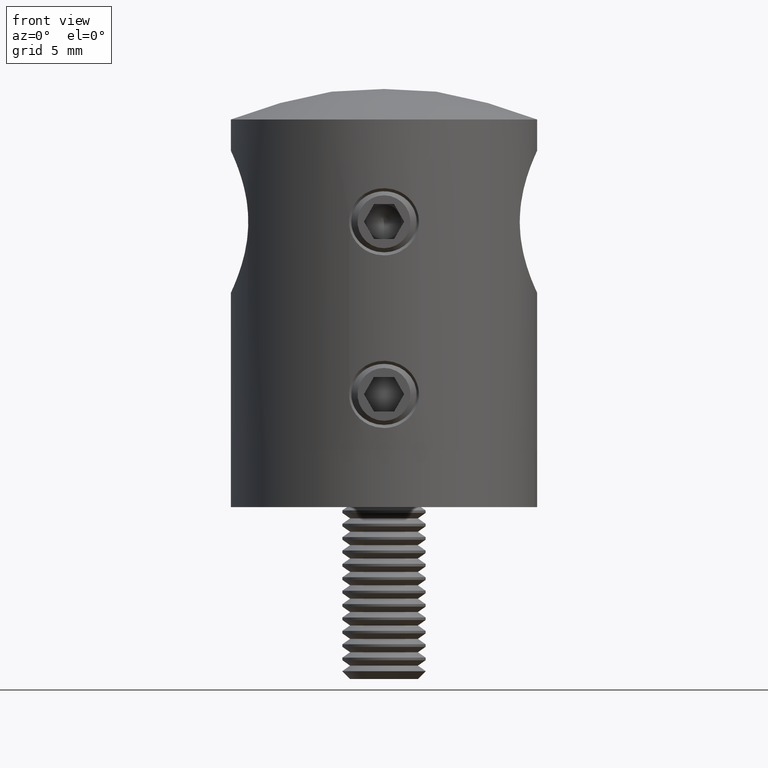
[diagram: clean part render]
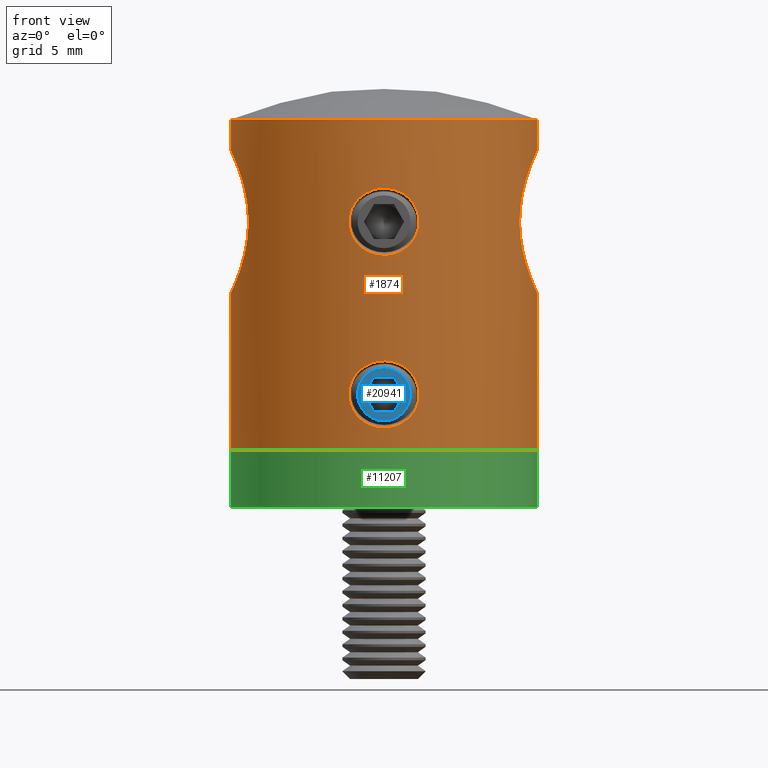
[diagram: same view with three faces highlighted in distinct colors, each labeled with its STEP entity id]
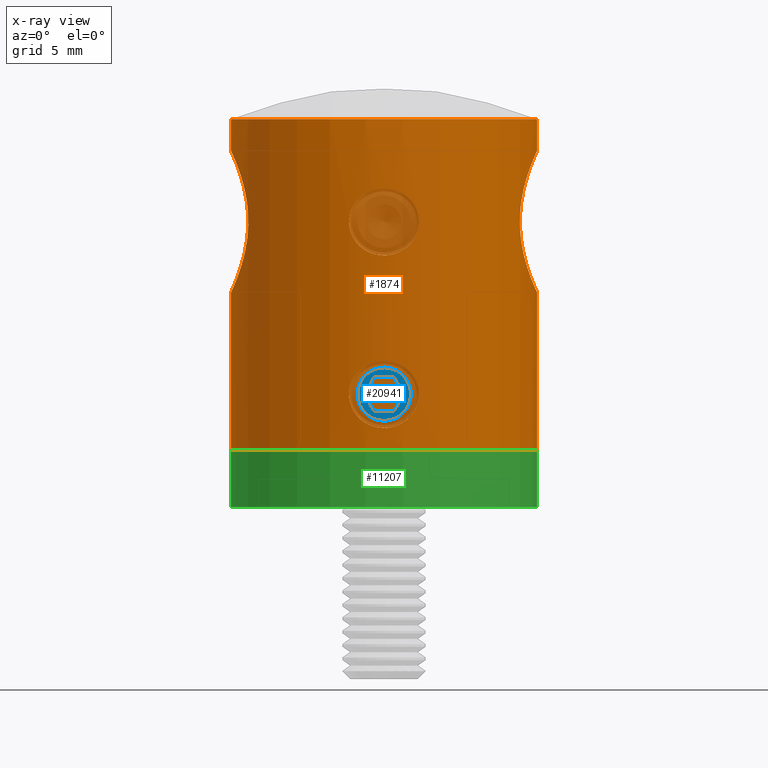
[diagram: x-ray of the same camera — body ghosted, the three highlighted faces saturated]
A machine part, front view with three faces highlighted in distinct colors.
The next image is the same camera in x-ray (body ghosted, the three faces saturated) — at least one of them is partly hidden behind the body in this view.
Their STEP definitions:

[orange] entity #1874 — the highlighted cylindrical surface (bore or boss wall) has radius 11 mm, axis along (0, 0, 1).
#68 = CARTESIAN_POINT ( 'NONE',  ( -10.07413874253476000, 4.421680918401315300, 18.96272170532579100 ) ) ;
#92 = CARTESIAN_POINT ( 'NONE',  ( 2.087175410688430600, -10.80017123961548500, 15.05642817077661600 ) ) ;
#123 = CARTESIAN_POINT ( 'NONE',  ( 0.9648935137385287200, -10.95759921274479100, 6.229834885426770400 ) ) ;
#169 = CARTESIAN_POINT ( 'NONE',  ( 10.30987621817060100, -3.842732241926132300, 19.76912654204613400 ) ) ;
#201 = CARTESIAN_POINT ( 'NONE',  ( 1.265772666319474600, -10.93117442413812100, 1.890181047744562000 ) ) ;
#242 = CARTESIAN_POINT ( 'NONE',  ( 0.6509923734586801100, -10.98190638562795800, 14.06202588692813500 ) ) ;
#245 = CARTESIAN_POINT ( 'NONE',  ( 10.98461965845903200, 0.6696594642287665400, 21.46708344749500700 ) ) ;
#274 = CARTESIAN_POINT ( 'NONE',  ( 2.089123661313935900, -10.79979455025595500, 5.340769317046009800 ) ) ;
#294 = CARTESIAN_POINT ( 'NONE',  ( -10.98362801482573100, -0.6851161954445393900, 11.33505918355280800 ) ) ;
#322 = CARTESIAN_POINT ( 'NONE',  ( 9.764554807653103900, -5.065479761543580900, 15.71864772819508700 ) ) ;
#397 = CARTESIAN_POINT ( 'NONE',  ( 9.815636342375485800, -4.965348642925767400, 15.22371585600221900 ) ) ;
#409 = EDGE_CURVE ( 'NONE', #2260, #2260, #21624, .T. ) ;
#444 = CARTESIAN_POINT ( 'NONE',  ( -9.746435882187436000, -5.099704667917423600, 16.57715091522956600 ) ) ;
#472 = CARTESIAN_POINT ( 'NONE',  ( 10.76752374769291600, 2.271502190894515200, 20.97854765344257500 ) ) ;
#546 = CARTESIAN_POINT ( 'NONE',  ( 9.831401816782660700, 4.934482580680001900, 15.06731954339826500 ) ) ;
#597 = CARTESIAN_POINT ( 'NONE',  ( -10.30907895527403900, -3.845060912577609200, 13.03314621997213000 ) ) ;
#702 = CARTESIAN_POINT ( 'NONE',  ( 11.00000000000000200, 0.3420402686100437200, 11.29999999999999700 ) ) ;
#986 = EDGE_LOOP ( 'NONE', ( #4787 ) ) ;
#1330 = CARTESIAN_POINT ( 'NONE',  ( -2.495363705507605000, -10.71327480271960800, 16.71753173803435300 ) ) ;
#1372 = FACE_BOUND ( 'NONE', #3658, .T. ) ;
#1401 = CARTESIAN_POINT ( 'NONE',  ( -1.996185883716013400, -10.81775451557036900, 17.87424092245295900 ) ) ;
#1475 = CARTESIAN_POINT ( 'NONE',  ( -1.892943344172693700, -10.83654561251257900, 17.99533139784182700 ) ) ;
#1506 = CARTESIAN_POINT ( 'NONE',  ( -2.179285043678576000, -10.78236625296386300, 2.788823219965029600 ) ) ;
#1533 = CIRCLE ( 'NONE', #13713, 11.00000000000000000 ) ;
#1540 = CARTESIAN_POINT ( 'NONE',  ( 1.535022905045015500, -10.89323192800198800, 18.31811697579191600 ) ) ;
#1614 = CARTESIAN_POINT ( 'NONE',  ( -2.319860156032100400, -10.75259265742242600, 17.32577823827256900 ) ) ;
#1636 = ORIENTED_EDGE ( 'NONE', *, *, #13036, .F. ) ;
#1646 = CARTESIAN_POINT ( 'NONE',  ( -0.3315329495189393000, -10.99999999999999600, 1.584844930053871600 ) ) ;
#1718 = CARTESIAN_POINT ( 'NONE',  ( 1.535022905085276800, -10.89323192799682400, 5.918116975765959100 ) ) ;
#1736 = CARTESIAN_POINT ( 'NONE',  ( -9.764554807653102100, 5.065479761543580900, 15.71864772819509100 ) ) ;
#1793 = CARTESIAN_POINT ( 'NONE',  ( 2.463009590041774600, -10.72070817434008000, 3.526680430776609800 ) ) ;
#1813 = CARTESIAN_POINT ( 'NONE',  ( -9.831210612696358100, 4.934853384125918100, 17.73043615380184000 ) ) ;
#1872 = CARTESIAN_POINT ( 'NONE',  ( 1.399033590713174800, -10.91066932007638700, 6.005811658922017800 ) ) ;
#1874 = ADVANCED_FACE ( 'NONE', ( #12457, #10279, #2156, #1372, #14330, #20322 ), #14054, .T. ) ;
#1919 = CARTESIAN_POINT ( 'NONE',  ( 10.00294675193621100, -4.578365243016970800, 18.67177825640489200 ) ) ;
#1947 = CARTESIAN_POINT ( 'NONE',  ( -0.6530340315527127800, -10.98180644576739700, 6.337544000683097400 ) ) ;
#1965 = CARTESIAN_POINT ( 'NONE',  ( -10.55011019610969000, 3.126729857943599800, 20.44275101567399100 ) ) ;
#1990 = CARTESIAN_POINT ( 'NONE',  ( 10.70022606909253500, 2.566238421094041200, 20.81964023380006900 ) ) ;
#2020 = CARTESIAN_POINT ( 'NONE',  ( 2.256830909742726800, -10.76619328781119300, 5.071927192361033400 ) ) ;
#2036 = CARTESIAN_POINT ( 'NONE',  ( -9.745983956010393400, -5.100568316517894600, 16.07184845647866600 ) ) ;
#2060 = CARTESIAN_POINT ( 'NONE',  ( 10.69954747067740900, -2.569226743090022400, 11.98195554385583300 ) ) ;
#2130 = CARTESIAN_POINT ( 'NONE',  ( 11.00031598307091900, 0.3266202780843043800, 21.50068153325095100 ) ) ;
#2156 = FACE_BOUND ( 'NONE', #20956, .T. ) ;
#2176 = CARTESIAN_POINT ( 'NONE',  ( -10.47336877759368400, -3.371864480480711200, 20.24047110347593300 ) ) ;
#2208 = CARTESIAN_POINT ( 'NONE',  ( 10.55378527435345500, 3.114166653605242800, 20.45225437055679100 ) ) ;
#2249 = CARTESIAN_POINT ( 'NONE',  ( -9.763479344190180600, -5.067548827356644900, 15.73283853468677900 ) ) ;
#2260 = VERTEX_POINT ( 'NONE', #2459 ) ;
#2276 = CARTESIAN_POINT ( 'NONE',  ( 10.47201491691117100, 3.376167339972384200, 12.56311429802452300 ) ) ;
#2350 = CARTESIAN_POINT ( 'NONE',  ( 10.00222700330179600, 4.579911297734634300, 14.13158646250898800 ) ) ;
#2459 = CARTESIAN_POINT ( 'NONE',  ( -10.99999999999999800, 0.0000000000000000000, 11.29999999999999700 ) ) ;
#3055 = CARTESIAN_POINT ( 'NONE',  ( 0.3311095054345719000, -10.99992139316568700, 18.81483076791868600 ) ) ;
#3130 = CARTESIAN_POINT ( 'NONE',  ( -2.511729057886776100, -10.70939854239878000, 16.55793633575457200 ) ) ;
#3165 = CARTESIAN_POINT ( 'NONE',  ( -2.495562452211827600, -10.71322910456378900, 3.683362971071481300 ) ) ;
#3207 = CARTESIAN_POINT ( 'NONE',  ( -1.776361239528236000, -10.85562254072522800, 18.10747495177491800 ) ) ;
#3237 = CARTESIAN_POINT ( 'NONE',  ( -2.463083399544349300, -10.72069121684273800, 4.472964312552125700 ) ) ;
#3280 = CARTESIAN_POINT ( 'NONE',  ( -2.430803093581094000, -10.72810763096586800, 17.02839688706989600 ) ) ;
#3354 = CARTESIAN_POINT ( 'NONE',  ( -2.430626934628957100, -10.72814813956344100, 15.77081717116243500 ) ) ;
#3360 = VERTEX_POINT ( 'NONE', #11021 ) ;
#3389 = CARTESIAN_POINT ( 'NONE',  ( 0.1643935056628486900, -11.00000000000000000, 1.584844886136918000 ) ) ;
#3409 = CARTESIAN_POINT ( 'NONE',  ( -10.99999999999999600, 0.3420402686100470500, 11.29999999999999900 ) ) ;
#3430 = CARTESIAN_POINT ( 'NONE',  ( -2.020667218593132300E-015, -10.99999999999999800, 13.98484490069484600 ) ) ;
#3463 = CARTESIAN_POINT ( 'NONE',  ( 2.087175410688430600, -10.80017123961548500, 2.656428170776617300 ) ) ;
#3482 = CARTESIAN_POINT ( 'NONE',  ( -9.746124043521533100, 5.100300603888077200, 16.55970841759691200 ) ) ;
#3505 = CARTESIAN_POINT ( 'NONE',  ( 0.4897246382423631200, -10.98909321912860500, 14.03119656173292800 ) ) ;
#3614 = CARTESIAN_POINT ( 'NONE',  ( 2.178857699620390800, -10.78245327803794100, 2.788117446777010700 ) ) ;
#3657 = CARTESIAN_POINT ( 'NONE',  ( 10.69790093024885600, -2.576078500588502500, 20.81407917215978300 ) ) ;
#3658 = EDGE_LOOP ( 'NONE', ( #6741 ) ) ;
#3686 = CARTESIAN_POINT ( 'NONE',  ( 2.511799944583926100, -10.70938191707799400, 4.156688389902742000 ) ) ;
#3729 = CARTESIAN_POINT ( 'NONE',  ( 1.995493121756457100, -10.81788920119303300, 14.92473889477621200 ) ) ;
#3731 = CARTESIAN_POINT ( 'NONE',  ( 9.833678025644266200, 4.929959429588495600, 17.74888431453495100 ) ) ;
#3778 = CARTESIAN_POINT ( 'NONE',  ( -10.99967404411871300, 0.3475679165322346200, 21.49929695674811800 ) ) ;
#3790 = EDGE_CURVE ( 'NONE', #3360, #3360, #13560, .T. ) ;
#3807 = CARTESIAN_POINT ( 'NONE',  ( 9.782123209470828600, 5.031053208532882500, 17.25264343705779500 ) ) ;
#3856 = CARTESIAN_POINT ( 'NONE',  ( -10.23062083369498000, -4.046496105150158200, 19.52160426523857600 ) ) ;
#3864 = B_SPLINE_CURVE_WITH_KNOTS ( 'NONE', 3,
 ( #18662, #1646, #17077, #13731, #20346, #10268, #9971, #4766, #13519, #16863, #6511, #11737, #18594, #1506, #13453, #8235, #6728, #8312, #11814, #3165, #4907, #13583, #17006, #6651, #3237, #15336, #8447, #20559, #10191, #22297, #11954, #13655, #10495, #10345, #15708, #5346, #12169, #7026, #1947, #20863, #8665, #5200, #15781, #13955, #22443, #123, #8889, #17442, #1872, #1718, #12105, #7099, #6871, #5427, #274, #14023, #2020, #13802, #20938, #12311, #5128, #18947, #3686, #10642, #17516, #7173, #1793, #19109, #19256, #12246, #20788, #3614, #3463, #21006, #17301, #12389, #15559, #201, #19178, #8813, #8740, #10564, #8599, #3389, #15480 ),
 .UNSPECIFIED., .T., .F.,
 ( 4, 3, 3, 3, 3, 3, 3, 3, 3, 3, 3, 3, 3, 3, 3, 3, 3, 3, 3, 3, 3, 3, 3, 3, 3, 3, 3, 3, 4 ),
 ( 0.0000000000000000000, 0.03571428571428571200, 0.07142857142857142500, 0.1071428571428571400, 0.1428571428571428500, 0.1785714285714285800, 0.2142857142857142700, 0.2500000000000000000, 0.2857142857142857000, 0.3214285714285714500, 0.3571428571428571500, 0.3928571428571428500, 0.4285714285714285500, 0.4642857142857143000, 0.5000000000000000000, 0.5357142857142857000, 0.5714285714285714000, 0.6071428571428571000, 0.6428571428571429000, 0.6785714285714286000, 0.7142857142857143000, 0.7500000000000000000, 0.7857142857142857000, 0.8214285714285714000, 0.8571428571428571000, 0.8928571428571429000, 0.9285714285714286000, 0.9642857142857143000, 1.000000000000000000 ),
 .UNSPECIFIED. ) ;
#3933 = CARTESIAN_POINT ( 'NONE',  ( -10.07469812271536100, -4.420400662356025900, 13.83512119538369900 ) ) ;
#3961 = CARTESIAN_POINT ( 'NONE',  ( 9.767782344364496400, -5.058733202320076400, 17.06944071582966400 ) ) ;
#4014 = CARTESIAN_POINT ( 'NONE',  ( -10.87989800168600500, -1.651396176960101300, 21.23691135796435600 ) ) ;
#4037 = CARTESIAN_POINT ( 'NONE',  ( 10.92259533598678600, 1.344016255707064300, 11.46881049038183600 ) ) ;
#4132 = CIRCLE ( 'NONE', #20666, 10.99999999999999600 ) ;
#4231 = EDGE_CURVE ( 'NONE', #9034, #9034, #3864, .T. ) ;
#4334 = CARTESIAN_POINT ( 'NONE',  ( 10.30907895527403500, 3.845060912577607400, 13.03314621997213000 ) ) ;
#4406 = DIRECTION ( 'NONE',  ( -0.0000000000000000000, -0.0000000000000000000, 1.000000000000000000 ) ) ;
#4766 = CARTESIAN_POINT ( 'NONE',  ( -1.533328306870229700, -10.89347143110832900, 2.080631270009437800 ) ) ;
#4787 = ORIENTED_EDGE ( 'NONE', *, *, #14007, .T. ) ;
#4806 = CARTESIAN_POINT ( 'NONE',  ( 2.463499994663159100, -10.72059549541417000, 16.87095394980573500 ) ) ;
#4879 = CARTESIAN_POINT ( 'NONE',  ( -0.6530340314932273600, -10.98180644577005100, 18.73754400069448100 ) ) ;
#4907 = CARTESIAN_POINT ( 'NONE',  ( -2.511703974928243700, -10.70940442520010400, 3.842739291575714100 ) ) ;
#4945 = CARTESIAN_POINT ( 'NONE',  ( -0.4903270790838651400, -10.98906635504204500, 18.76868820874940300 ) ) ;
#5017 = CARTESIAN_POINT ( 'NONE',  ( 2.383584876156975800, -10.73884196754174300, 17.17801713178284500 ) ) ;
#5097 = CARTESIAN_POINT ( 'NONE',  ( -0.9631123533028067600, -10.95775591053731500, 18.63054673490993100 ) ) ;
#5128 = CARTESIAN_POINT ( 'NONE',  ( 2.463499994663159100, -10.72059549541417000, 4.470953949805736900 ) ) ;
#5143 = CARTESIAN_POINT ( 'NONE',  ( -10.76607921010692700, 2.278039284623406300, 11.82485560310605200 ) ) ;
#5200 = CARTESIAN_POINT ( 'NONE',  ( -0.1616220107861330000, -11.00003883473656800, 6.415315291332948500 ) ) ;
#5219 = CARTESIAN_POINT ( 'NONE',  ( -9.767782344364500000, 5.058733202320079100, 17.06944071582966800 ) ) ;
#5244 = CARTESIAN_POINT ( 'NONE',  ( 2.430721202022829700, -10.72812621128730400, 15.77131744761732800 ) ) ;
#5316 = CARTESIAN_POINT ( 'NONE',  ( 2.256039582261505100, -10.76635616935049600, 15.32675565418613100 ) ) ;
#5346 = CARTESIAN_POINT ( 'NONE',  ( -1.268443744210112200, -10.93091935414430800, 6.108644643610253100 ) ) ;
#5368 = CARTESIAN_POINT ( 'NONE',  ( -10.07530021768211400, 4.419092927928359100, 13.83261717824195000 ) ) ;
#5398 = CARTESIAN_POINT ( 'NONE',  ( 9.880785821988753900, -4.836366772746158600, 18.05286453897976900 ) ) ;
#5427 = CARTESIAN_POINT ( 'NONE',  ( 1.998357958369267700, -10.81735236367315700, 5.471525135721878800 ) ) ;
#5522 = CARTESIAN_POINT ( 'NONE',  ( -10.55378527435345100, -3.114166653605242800, 20.45225437055679400 ) ) ;
#5549 = CARTESIAN_POINT ( 'NONE',  ( 9.763479344190173500, 5.067548827356644900, 15.73283853468677900 ) ) ;
#5597 = CARTESIAN_POINT ( 'NONE',  ( -10.92420653231054900, -1.331174097726975900, 21.33474963736254500 ) ) ;
#5628 = CARTESIAN_POINT ( 'NONE',  ( 10.76607921010692700, -2.278039284623406800, 11.82485560310605500 ) ) ;
#5677 = CARTESIAN_POINT ( 'NONE',  ( -10.55128804721514000, -3.122534710036641400, 12.35424311392542600 ) ) ;
#5749 = CARTESIAN_POINT ( 'NONE',  ( -10.98389058231152000, 0.6828063300958870900, 21.46551967963448200 ) ) ;
#6198 = CARTESIAN_POINT ( 'NONE',  ( 0.0000000000000000000, 0.0000000000000000000, 0.0000000000000000000 ) ) ;
#6237 = EDGE_LOOP ( 'NONE', ( #8002 ) ) ;
#6511 = CARTESIAN_POINT ( 'NONE',  ( -1.892899697423030100, -10.83654340792634900, 2.404725380980155000 ) ) ;
#6551 = CARTESIAN_POINT ( 'NONE',  ( -1.261211241404091900, -10.92831925419361200, 14.30547254870696400 ) ) ;
#6619 = CARTESIAN_POINT ( 'NONE',  ( 1.660782927847469700, -10.87454360747016800, 18.21873868081512500 ) ) ;
#6651 = CARTESIAN_POINT ( 'NONE',  ( -2.495363705507605000, -10.71327480271960800, 4.317531738034352500 ) ) ;
#6698 = CARTESIAN_POINT ( 'NONE',  ( 1.116343252776377500, -10.94426300031195800, 18.56924477539900700 ) ) ;
#6728 = CARTESIAN_POINT ( 'NONE',  ( -2.382999229848468600, -10.73896813810681100, 3.220662270662221900 ) ) ;
#6741 = ORIENTED_EDGE ( 'NONE', *, *, #3790, .T. ) ;
#6768 = CARTESIAN_POINT ( 'NONE',  ( -0.8104466576801517800, -10.97117418874867300, 18.69149778061502700 ) ) ;
#6871 = CARTESIAN_POINT ( 'NONE',  ( 1.893470199382560000, -10.83645095076173300, 5.594738271604635200 ) ) ;
#6890 = CARTESIAN_POINT ( 'NONE',  ( -10.31115410062419500, 3.839293709232861000, 13.02699850404312800 ) ) ;
#6915 = CARTESIAN_POINT ( 'NONE',  ( 0.3284569030260461900, -10.99628005262925400, 14.00036723653772300 ) ) ;
#6970 = CARTESIAN_POINT ( 'NONE',  ( -9.780729526921806600, 5.033756045906779200, 17.23636692954555400 ) ) ;
#7026 = CARTESIAN_POINT ( 'NONE',  ( -0.8104466578491685800, -10.97117418873381900, 6.291497780559771200 ) ) ;
#7070 = CARTESIAN_POINT ( 'NONE',  ( 2.381829622713069700, -10.73922843645709300, 15.61740488451371400 ) ) ;
#7072 = CARTESIAN_POINT ( 'NONE',  ( 9.831210612696356300, -4.934853384125914600, 17.73043615380182200 ) ) ;
#7099 = CARTESIAN_POINT ( 'NONE',  ( 1.777126563584013900, -10.85549727912102600, 5.706738476233899100 ) ) ;
#7117 = CARTESIAN_POINT ( 'NONE',  ( -9.815636342375487500, 4.965348642925768300, 15.22371585600222100 ) ) ;
#7143 = CARTESIAN_POINT ( 'NONE',  ( 1.265772666088006400, -10.93117442415845100, 14.29018104766522700 ) ) ;
#7173 = CARTESIAN_POINT ( 'NONE',  ( 2.495297978060744700, -10.71329013739285200, 3.682043413930197400 ) ) ;
#7192 = CARTESIAN_POINT ( 'NONE',  ( -10.76524624909549000, 2.281684813646021900, 20.97317419629084200 ) ) ;
#7221 = CARTESIAN_POINT ( 'NONE',  ( 9.750955816283148900, 5.091093399825955300, 16.74569809806015600 ) ) ;
#7274 = CARTESIAN_POINT ( 'NONE',  ( -9.750955816283152400, -5.091093399825953500, 16.74569809806016000 ) ) ;
#7297 = CARTESIAN_POINT ( 'NONE',  ( 9.746124043521531300, -5.100300603888076300, 16.55970841759690500 ) ) ;
#7342 = CARTESIAN_POINT ( 'NONE',  ( -10.76752374769291600, -2.271502190894517900, 20.97854765344256100 ) ) ;
#7372 = CARTESIAN_POINT ( 'NONE',  ( 10.00436061697043800, -4.575241178648823000, 14.12254123351116800 ) ) ;
#7409 = VERTEX_POINT ( 'NONE', #21618 ) ;
#7451 = CARTESIAN_POINT ( 'NONE',  ( 11.00000000000000000, -1.084202172485504400E-016, 11.29999999999999900 ) ) ;
#7499 = CARTESIAN_POINT ( 'NONE',  ( -10.99999999999999600, 1.897353801849632800E-016, 11.29999999999999900 ) ) ;
#7672 = CARTESIAN_POINT ( 'NONE',  ( 10.22777535093213800, 4.053652137328402500, 13.28769383773697400 ) ) ;
#7741 = DIRECTION ( 'NONE',  ( 1.000000000000000000, 0.0000000000000000000, 0.0000000000000000000 ) ) ;
#7746 = CARTESIAN_POINT ( 'NONE',  ( 10.55128804721513100, 3.122534710036636100, 12.35424311392541900 ) ) ;
#8002 = ORIENTED_EDGE ( 'NONE', *, *, #4231, .T. ) ;
#8203 = CARTESIAN_POINT ( 'NONE',  ( 2.495530447802617200, -10.71323517469580200, 16.71605740764301700 ) ) ;
#8235 = CARTESIAN_POINT ( 'NONE',  ( -2.320240922396904300, -10.75251050043824500, 3.075104445097748900 ) ) ;
#8280 = CARTESIAN_POINT ( 'NONE',  ( -2.382856163137154800, -10.73900133749353000, 17.17981662011126800 ) ) ;
#8312 = CARTESIAN_POINT ( 'NONE',  ( -2.430626934630721900, -10.72814813956303400, 3.370817171176732100 ) ) ;
#8352 = CARTESIAN_POINT ( 'NONE',  ( 1.998357958369216600, -10.81735236367316800, 17.87152513571616200 ) ) ;
#8420 = CARTESIAN_POINT ( 'NONE',  ( -1.533328306870229700, -10.89347143110832900, 14.48063127000943600 ) ) ;
#8447 = CARTESIAN_POINT ( 'NONE',  ( -2.382856163137168100, -10.73900133749352800, 4.779816620111248000 ) ) ;
#8486 = CARTESIAN_POINT ( 'NONE',  ( -0.3276201266745030200, -10.99632626431403900, 18.79983241680432100 ) ) ;
#8599 = CARTESIAN_POINT ( 'NONE',  ( 0.3284569029660139900, -10.99628005263193000, 1.600367236529137300 ) ) ;
#8665 = CARTESIAN_POINT ( 'NONE',  ( -0.3276201266150175500, -10.99632626431669300, 6.399832416815710800 ) ) ;
#8686 = CARTESIAN_POINT ( 'NONE',  ( -10.00294675193620900, 4.578365243016970800, 18.67177825640488500 ) ) ;
#8740 = CARTESIAN_POINT ( 'NONE',  ( 0.6509923735187122000, -10.98190638562528300, 1.662025886936727500 ) ) ;
#8749 = VERTEX_POINT ( 'NONE', #21767 ) ;
#8759 = CARTESIAN_POINT ( 'NONE',  ( -10.99999999999999600, 1.897353801849632800E-016, 11.29999999999999900 ) ) ;
#8784 = CARTESIAN_POINT ( 'NONE',  ( 10.47088620841679000, -3.379449766977662900, 20.23365674153711100 ) ) ;
#8813 = CARTESIAN_POINT ( 'NONE',  ( 0.8106894968027548200, -10.97114265804646700, 1.708653337313666300 ) ) ;
#8863 = CARTESIAN_POINT ( 'NONE',  ( 10.47336877759368300, 3.371864480480710300, 20.24047110347592900 ) ) ;
#8889 = CARTESIAN_POINT ( 'NONE',  ( 1.116343252776195600, -10.94426300031197400, 6.169244775404881600 ) ) ;
#8906 = CARTESIAN_POINT ( 'NONE',  ( -9.883215163198309800, -4.831377203079143500, 18.06668807489311500 ) ) ;
#8934 = CARTESIAN_POINT ( 'NONE',  ( 9.746435882187439500, 5.099704667917422700, 16.57715091522957400 ) ) ;
#8982 = CARTESIAN_POINT ( 'NONE',  ( -10.70022606909253100, -2.566238421094046100, 20.81964023380005500 ) ) ;
#9011 = CARTESIAN_POINT ( 'NONE',  ( 10.98409477427311900, -0.6774680798639226600, 11.33405321981837200 ) ) ;
#9034 = VERTEX_POINT ( 'NONE', #10867 ) ;
#9057 = CARTESIAN_POINT ( 'NONE',  ( -9.833678025644271500, -4.929959429588498300, 17.74888431453494800 ) ) ;
#9084 = CARTESIAN_POINT ( 'NONE',  ( 9.746609327651654600, -5.099373206684544100, 16.05260251348448400 ) ) ;
#9351 = DIRECTION ( 'NONE',  ( -0.0000000000000000000, -0.0000000000000000000, 1.000000000000000000 ) ) ;
#9522 = DIRECTION ( 'NONE',  ( -0.0000000000000000000, -0.0000000000000000000, 1.000000000000000000 ) ) ;
#9939 = CARTESIAN_POINT ( 'NONE',  ( 2.511799944583926100, -10.70938191707799400, 16.55668838989981500 ) ) ;
#9971 = CARTESIAN_POINT ( 'NONE',  ( -1.397269774137160900, -10.91089534265097100, 1.993051909358202400 ) ) ;
#10012 = CARTESIAN_POINT ( 'NONE',  ( -2.257482614959168500, -10.76605286276669600, 15.32954661957115100 ) ) ;
#10087 = CARTESIAN_POINT ( 'NONE',  ( -2.087678545343330000, -10.80007399471471700, 15.05715110750825800 ) ) ;
#10160 = CARTESIAN_POINT ( 'NONE',  ( -0.3315329493984952600, -10.99999999999999600, 13.98484493005393500 ) ) ;
#10191 = CARTESIAN_POINT ( 'NONE',  ( -2.256864148927033100, -10.76618397735132300, 5.071739856433886500 ) ) ;
#10239 = CARTESIAN_POINT ( 'NONE',  ( -2.087083062809130600, -10.80018908579545200, 17.74370445952115500 ) ) ;
#10268 = CARTESIAN_POINT ( 'NONE',  ( -1.261211241404091900, -10.92831925419361200, 1.905472548706967000 ) ) ;
#10279 = FACE_BOUND ( 'NONE', #986, .T. ) ;
#10345 = CARTESIAN_POINT ( 'NONE',  ( -1.776361239528236000, -10.85562254072522800, 5.707474951774919700 ) ) ;
#10364 = CARTESIAN_POINT ( 'NONE',  ( -9.885833756099657400, 4.824245512483266800, 14.73718638957849000 ) ) ;
#10463 = CARTESIAN_POINT ( 'NONE',  ( 2.318934602487287200, -10.75279230290379400, 15.47208026934992200 ) ) ;
#10495 = CARTESIAN_POINT ( 'NONE',  ( -1.892943344172719700, -10.83654561251257500, 5.595331397847613400 ) ) ;
#10537 = CARTESIAN_POINT ( 'NONE',  ( 10.07729814196231300, 4.414498332747689000, 18.97502395870773400 ) ) ;
#10564 = CARTESIAN_POINT ( 'NONE',  ( 0.4897246382423631200, -10.98909321912860500, 1.631196561732932500 ) ) ;
#10584 = CARTESIAN_POINT ( 'NONE',  ( -10.69954747067740900, 2.569226743090020600, 11.98195554385582900 ) ) ;
#10612 = CARTESIAN_POINT ( 'NONE',  ( 10.07530021768211800, -4.419092927928361700, 13.83261717824195400 ) ) ;
#10642 = CARTESIAN_POINT ( 'NONE',  ( 2.511715917072544300, -10.70940162436372500, 3.998297708608496300 ) ) ;
#10664 = CARTESIAN_POINT ( 'NONE',  ( -9.880766135392452300, -4.836382232452141500, 14.74751872209966700 ) ) ;
#10691 = CARTESIAN_POINT ( 'NONE',  ( 10.87817437663434800, -1.662301648955468900, 11.56697170889746400 ) ) ;
#10737 = CARTESIAN_POINT ( 'NONE',  ( -10.99999999999999800, -0.3420402686100491000, 11.29999999999999900 ) ) ;
#10763 = CARTESIAN_POINT ( 'NONE',  ( 9.836864287762125500, -4.923327614744372300, 15.05868010317692600 ) ) ;
#10772 = ORIENTED_EDGE ( 'NONE', *, *, #409, .T. ) ;
#10805 = CARTESIAN_POINT ( 'NONE',  ( -10.87691252494811600, 1.670145597579503200, 21.23017820595980600 ) ) ;
#10832 = CARTESIAN_POINT ( 'NONE',  ( 10.76524624909549400, -2.281684813646024600, 20.97317419629084500 ) ) ;
#10867 = CARTESIAN_POINT ( 'NONE',  ( -2.020667218593132300E-015, -10.99999999999999800, 1.584844900694847100 ) ) ;
#10883 = CARTESIAN_POINT ( 'NONE',  ( -10.79372047998855100, -2.126081526392301400, 11.76127184379781600 ) ) ;
#11021 = CARTESIAN_POINT ( 'NONE',  ( 11.00000000000000000, 0.0000000000000000000, 11.29999999999999700 ) ) ;
#11066 = CARTESIAN_POINT ( 'NONE',  ( 9.880766135392448700, 4.836382232452138800, 14.74751872209966700 ) ) ;
#11333 = CARTESIAN_POINT ( 'NONE',  ( 10.99999999999999600, 0.0000000000000000000, 23.74878637916747000 ) ) ;
#11707 = CARTESIAN_POINT ( 'NONE',  ( -2.382999229834640100, -10.73896813810979400, 15.62066227062434400 ) ) ;
#11737 = CARTESIAN_POINT ( 'NONE',  ( -1.996072047008083900, -10.81778173646557100, 2.525478995051488900 ) ) ;
#11784 = CARTESIAN_POINT ( 'NONE',  ( 0.9648935137385287200, -10.95759921274479100, 18.62983488542676700 ) ) ;
#11814 = CARTESIAN_POINT ( 'NONE',  ( -2.463094693421274500, -10.72068862206341100, 3.527090071124106900 ) ) ;
#11854 = CARTESIAN_POINT ( 'NONE',  ( -2.511716516407509900, -10.70940148379944100, 16.40033781366658500 ) ) ;
#11922 = CARTESIAN_POINT ( 'NONE',  ( -1.115993498471008700, -10.94431255610991500, 14.23051304831070000 ) ) ;
#11954 = CARTESIAN_POINT ( 'NONE',  ( -2.087083062809130600, -10.80018908579545200, 5.343704459521158700 ) ) ;
#11993 = CARTESIAN_POINT ( 'NONE',  ( -2.256864148927046000, -10.76618397735132100, 17.47173985643386700 ) ) ;
#12105 = CARTESIAN_POINT ( 'NONE',  ( 1.660782927785467800, -10.87454360748031900, 5.818738680863162000 ) ) ;
#12169 = CARTESIAN_POINT ( 'NONE',  ( -0.9631123533028165300, -10.95775591053731500, 6.230546734909931500 ) ) ;
#12214 = CARTESIAN_POINT ( 'NONE',  ( 2.463009590041774600, -10.72070817434008000, 15.92668043077660700 ) ) ;
#12246 = CARTESIAN_POINT ( 'NONE',  ( 2.318934602487287200, -10.75279230290379400, 3.072080269349922100 ) ) ;
#12261 = CARTESIAN_POINT ( 'NONE',  ( -10.98409477427311600, 0.6774680798639229900, 11.33405321981837200 ) ) ;
#12284 = CARTESIAN_POINT ( 'NONE',  ( 2.495297978060719400, -10.71329013739285700, 16.08204341393588500 ) ) ;
#12286 = CARTESIAN_POINT ( 'NONE',  ( 9.883215163198309800, 4.831377203079142600, 18.06668807489310100 ) ) ;
#12311 = CARTESIAN_POINT ( 'NONE',  ( 2.431469541523701300, -10.72795581613253500, 4.625850491968456000 ) ) ;
#12360 = CARTESIAN_POINT ( 'NONE',  ( 10.55213191267872500, -3.119896509840596200, 12.35200189701630300 ) ) ;
#12389 = CARTESIAN_POINT ( 'NONE',  ( 1.774878405260975000, -10.85586508052390200, 2.291099913721534000 ) ) ;
#12406 = CARTESIAN_POINT ( 'NONE',  ( -10.98461965845903200, -0.6696594642287685400, 21.46708344749502100 ) ) ;
#12429 = CARTESIAN_POINT ( 'NONE',  ( 10.92420653231055500, 1.331174097726976100, 21.33474963736256000 ) ) ;
#12457 = FACE_BOUND ( 'NONE', #6237, .T. ) ;
#12499 = CARTESIAN_POINT ( 'NONE',  ( 9.750431221126522300, -5.092096281612857200, 16.73088962366718100 ) ) ;
#12543 = CARTESIAN_POINT ( 'NONE',  ( -10.31158215273080500, -3.838254438372356200, 19.77438753519448200 ) ) ;
#12569 = CARTESIAN_POINT ( 'NONE',  ( 10.22735391402577700, -4.054721379485370000, 19.51095471163539200 ) ) ;
#12651 = CARTESIAN_POINT ( 'NONE',  ( 10.07469812271536800, 4.420400662356026800, 13.83512119538370500 ) ) ;
#13036 = EDGE_CURVE ( 'NONE', #17672, #17672, #4132, .T. ) ;
#13175 = CARTESIAN_POINT ( 'NONE',  ( 0.0000000000000000000, 0.0000000000000000000, 23.74878637916747000 ) ) ;
#13422 = CARTESIAN_POINT ( 'NONE',  ( -2.495562452213592400, -10.71322910456338400, 16.08336297108577600 ) ) ;
#13453 = CARTESIAN_POINT ( 'NONE',  ( -2.257482614945340400, -10.76605286276967800, 2.929546619533276000 ) ) ;
#13490 = CARTESIAN_POINT ( 'NONE',  ( 1.399033590713174800, -10.91066932007638700, 18.40581165892201200 ) ) ;
#13519 = CARTESIAN_POINT ( 'NONE',  ( -1.661524859658452900, -10.87442308525437100, 2.181962713599229900 ) ) ;
#13557 = CARTESIAN_POINT ( 'NONE',  ( -1.397269774137160900, -10.91089534265097100, 14.39305190935820100 ) ) ;
#13560 = B_SPLINE_CURVE_WITH_KNOTS ( 'NONE', 3,
 ( #13998, #19375, #9011, #15831, #10691, #5628, #2060, #12360, #14150, #17488, #15978, #10612, #7372, #15754, #19449, #10763, #397, #322, #9084, #7297, #12499, #3961, #21199, #7072, #5398, #1919, #16057, #12569, #169, #8784, #19300, #3657, #10832, #17634, #19225, #21055, #20910, #2130, #245, #12429, #19153, #472, #1990, #2208, #8863, #14068, #14302, #10537, #14229, #12286, #3731, #3807, #17561, #7221, #8934, #15905, #5549, #546, #11066, #2350, #12651, #7672, #4334, #2276, #7746, #14380, #16446, #16214, #19526, #19830, #4037, #17781, #702, #7451 ),
 .UNSPECIFIED., .T., .F.,
 ( 4, 2, 2, 2, 2, 2, 2, 2, 2, 2, 2, 2, 2, 2, 2, 2, 2, 2, 2, 2, 2, 2, 2, 2, 2, 2, 2, 2, 2, 2, 2, 2, 2, 2, 2, 2, 4 ),
 ( 0.0000000000000000000, 0.001010597652588617900, 0.002021195305177235400, 0.003031792957765852900, 0.004042390610354470000, 0.005052988262943087000, 0.006063585915531705800, 0.006568884741826014300, 0.007074183568120321100, 0.008084781220708941700, 0.008590080047003246700, 0.009095378873297553500, 0.01010597652588616200, 0.01111657417847477400, 0.01212717183106338400, 0.01313776948365199600, 0.01414836713624060600, 0.01515896478882921400, 0.01616956244141782400, 0.01718016009400643800, 0.01819075774659504800, 0.01920135539918365800, 0.02021195305177226800, 0.02122255070436087800, 0.02223314835694948900, 0.02324374600953810200, 0.02374904483583240700, 0.02425434366212671200, 0.02526494131471532200, 0.02627553896730392600, 0.02728613661989253200, 0.02829673427248113200, 0.02930733192506973500, 0.02981263075136404000, 0.03031792957765834200, 0.03132852723024694800, 0.03233912488283555800 ),
 .UNSPECIFIED. ) ;
#13583 = CARTESIAN_POINT ( 'NONE',  ( -2.511716516407509900, -10.70940148379944100, 4.000337813666588400 ) ) ;
#13625 = CARTESIAN_POINT ( 'NONE',  ( 2.089123661313935900, -10.79979455025595500, 17.74076931704600600 ) ) ;
#13655 = CARTESIAN_POINT ( 'NONE',  ( -1.996185883738268000, -10.81775451556606900, 5.474240922415229500 ) ) ;
#13698 = CARTESIAN_POINT ( 'NONE',  ( -0.1616220108473223100, -11.00003883473658200, 18.81531529133300400 ) ) ;
#13713 = AXIS2_PLACEMENT_3D ( 'NONE', #6198, #9522, #19650 ) ;
#13731 = CARTESIAN_POINT ( 'NONE',  ( -0.9635496633443911800, -10.95771746515983500, 1.769627895335405900 ) ) ;
#13802 = CARTESIAN_POINT ( 'NONE',  ( 2.320207892953276600, -10.75251762767572900, 4.924972162063986600 ) ) ;
#13823 = CARTESIAN_POINT ( 'NONE',  ( -9.746609327651651000, 5.099373206684540500, 16.05260251348449400 ) ) ;
#13848 = CARTESIAN_POINT ( 'NONE',  ( 1.774878405260975000, -10.85586508052390200, 14.69109991372153200 ) ) ;
#13898 = CARTESIAN_POINT ( 'NONE',  ( -10.22735391402577100, 4.054721379485367400, 19.51095471163538200 ) ) ;
#13955 = CARTESIAN_POINT ( 'NONE',  ( 0.3311095053121640400, -10.99992139316571600, 6.414830767918807900 ) ) ;
#13972 = CARTESIAN_POINT ( 'NONE',  ( -10.55213191267872700, 3.119896509840596200, 12.35200189701629700 ) ) ;
#13998 = CARTESIAN_POINT ( 'NONE',  ( 11.00000000000000000, -1.084202172485504400E-016, 11.29999999999999900 ) ) ;
#14007 = EDGE_CURVE ( 'NONE', #8749, #8749, #21466, .T. ) ;
#14023 = CARTESIAN_POINT ( 'NONE',  ( 2.179889364258604400, -10.78223673683875500, 5.210013498370140700 ) ) ;
#14054 = CYLINDRICAL_SURFACE ( 'NONE', #21158, 10.99999999999999800 ) ;
#14068 = CARTESIAN_POINT ( 'NONE',  ( 10.31158215273080500, 3.838254438372356200, 19.77438753519447800 ) ) ;
#14150 = CARTESIAN_POINT ( 'NONE',  ( 10.47192994644006200, -3.376204713791206100, 12.56352283884598900 ) ) ;
#14200 = CARTESIAN_POINT ( 'NONE',  ( -9.831401816782660700, -4.934482580680002800, 15.06731954339825900 ) ) ;
#14229 = CARTESIAN_POINT ( 'NONE',  ( 10.00459041982638700, 4.574747880705968100, 18.67853826946136000 ) ) ;
#14277 = CARTESIAN_POINT ( 'NONE',  ( -10.69790093024884900, 2.576078500588504300, 20.81407917215977200 ) ) ;
#14302 = CARTESIAN_POINT ( 'NONE',  ( 10.23062083369497800, 4.046496105150160000, 19.52160426523856900 ) ) ;
#14330 = FACE_OUTER_BOUND ( 'NONE', #20400, .T. ) ;
#14350 = CARTESIAN_POINT ( 'NONE',  ( -10.00222700330179200, -4.579911297734634300, 14.13158646250897700 ) ) ;
#14380 = CARTESIAN_POINT ( 'NONE',  ( 10.66112523159967700, 2.713002840732187300, 12.07834423683121400 ) ) ;
#15152 = CARTESIAN_POINT ( 'NONE',  ( 1.263044276381334100, -10.92810671215078600, 18.49350634205210800 ) ) ;
#15229 = CARTESIAN_POINT ( 'NONE',  ( -1.892899697437106800, -10.83654340792404500, 14.80472538099371200 ) ) ;
#15305 = CARTESIAN_POINT ( 'NONE',  ( -1.268443744548116500, -10.93091935411460000, 18.50864464349973900 ) ) ;
#15336 = CARTESIAN_POINT ( 'NONE',  ( -2.430803093581094000, -10.72810763096586800, 4.628396887069898800 ) ) ;
#15378 = CARTESIAN_POINT ( 'NONE',  ( 2.320207892953276600, -10.75251762767572900, 17.32497216206398200 ) ) ;
#15450 = CARTESIAN_POINT ( 'NONE',  ( -2.177980241902248300, -10.78262365602053500, 17.61316799658935400 ) ) ;
#15480 = CARTESIAN_POINT ( 'NONE',  ( -2.020667218593132300E-015, -10.99999999999999800, 1.584844900694847100 ) ) ;
#15559 = CARTESIAN_POINT ( 'NONE',  ( 1.543890676010267700, -10.89363039259128000, 2.069276441871760900 ) ) ;
#15578 = CARTESIAN_POINT ( 'NONE',  ( -9.750431221126522300, 5.092096281612858100, 16.73088962366718100 ) ) ;
#15609 = EDGE_LOOP ( 'NONE', ( #20542 ) ) ;
#15677 = CARTESIAN_POINT ( 'NONE',  ( 0.8106894969185034500, -10.97114265803630100, 14.10865333735333300 ) ) ;
#15708 = CARTESIAN_POINT ( 'NONE',  ( -1.543197030239268600, -10.89377639715053700, 5.931762059629532400 ) ) ;
#15726 = CARTESIAN_POINT ( 'NONE',  ( -10.47192994644006200, 3.376204713791207900, 12.56352283884599100 ) ) ;
#15751 = CARTESIAN_POINT ( 'NONE',  ( 0.9623838866416711800, -10.95781991341035100, 14.16916257412396400 ) ) ;
#15754 = CARTESIAN_POINT ( 'NONE',  ( 9.913515838807216000, -4.767307365066426600, 14.58060640433451600 ) ) ;
#15781 = CARTESIAN_POINT ( 'NONE',  ( 0.002621827913299337800, -10.99999968754628400, 6.415153783528235300 ) ) ;
#15831 = CARTESIAN_POINT ( 'NONE',  ( 10.92358240342935700, -1.335907363905573600, 11.46663083745702500 ) ) ;
#15877 = CARTESIAN_POINT ( 'NONE',  ( -10.30987621817060400, 3.842732241926132300, 19.76912654204614500 ) ) ;
#15905 = CARTESIAN_POINT ( 'NONE',  ( 9.745983956010393400, 5.100568316517894600, 16.07184845647866600 ) ) ;
#15953 = CARTESIAN_POINT ( 'NONE',  ( -10.92203846952601900, 1.349500825788746900, 21.32996568247475400 ) ) ;
#15978 = CARTESIAN_POINT ( 'NONE',  ( 10.22938670084714200, -4.049654862654770100, 13.28228732040597700 ) ) ;
#16030 = CARTESIAN_POINT ( 'NONE',  ( -10.47201491691116500, -3.376167339972387300, 12.56311429802451800 ) ) ;
#16057 = CARTESIAN_POINT ( 'NONE',  ( 10.07413874253476000, -4.421680918401317100, 18.96272170532579100 ) ) ;
#16112 = CARTESIAN_POINT ( 'NONE',  ( -10.66112523159967500, -2.713002840732189600, 12.07834423683121400 ) ) ;
#16214 = CARTESIAN_POINT ( 'NONE',  ( 10.76247523156004400, 2.278529707840944300, 11.83425253284901400 ) ) ;
#16393 = DIRECTION ( 'NONE',  ( 1.000000000000000000, 0.0000000000000000000, 0.0000000000000000000 ) ) ;
#16446 = CARTESIAN_POINT ( 'NONE',  ( 10.69623310193278500, 2.571608090004069400, 11.99266754206867200 ) ) ;
#16863 = CARTESIAN_POINT ( 'NONE',  ( -1.777212278540741600, -10.85548324659036000, 2.293344047289692400 ) ) ;
#16903 = CARTESIAN_POINT ( 'NONE',  ( -1.661524859644376400, -10.87442308525667500, 14.58196271358566800 ) ) ;
#16974 = CARTESIAN_POINT ( 'NONE',  ( 0.6619940356628312200, -10.98427163761045800, 18.75101510548229200 ) ) ;
#17006 = CARTESIAN_POINT ( 'NONE',  ( -2.511729057886776100, -10.70939854239878000, 4.157936335757463000 ) ) ;
#17046 = CARTESIAN_POINT ( 'NONE',  ( 0.002621827913309108200, -10.99999968754628400, 18.81515378352823500 ) ) ;
#17077 = CARTESIAN_POINT ( 'NONE',  ( -0.6586619930405998000, -10.98452728326412000, 1.647857589364626800 ) ) ;
#17118 = CARTESIAN_POINT ( 'NONE',  ( 2.431469541523701300, -10.72795581613253500, 17.02585049196845500 ) ) ;
#17194 = CARTESIAN_POINT ( 'NONE',  ( 1.777126563584013900, -10.85549727912102600, 18.10673847623389300 ) ) ;
#17244 = CARTESIAN_POINT ( 'NONE',  ( -10.87817437663434800, 1.662301648955468900, 11.56697170889746600 ) ) ;
#17270 = CARTESIAN_POINT ( 'NONE',  ( 2.178857699620404100, -10.78245327803794000, 15.18811744677702300 ) ) ;
#17301 = CARTESIAN_POINT ( 'NONE',  ( 1.890372269886328600, -10.83698242449021300, 2.402011649646420100 ) ) ;
#17339 = CARTESIAN_POINT ( 'NONE',  ( 2.511631889561162000, -10.70942133164945500, 16.23990702731718000 ) ) ;
#17411 = CARTESIAN_POINT ( 'NONE',  ( 0.1643935056931485900, -11.00000000000000000, 13.98484488613688500 ) ) ;
#17442 = CARTESIAN_POINT ( 'NONE',  ( 1.263044276341072700, -10.92810671215594800, 6.093506342078076600 ) ) ;
#17460 = CARTESIAN_POINT ( 'NONE',  ( -10.00436061697045000, 4.575241178648824700, 14.12254123351117700 ) ) ;
#17486 = CARTESIAN_POINT ( 'NONE',  ( 1.890372269886392700, -10.83698242449020200, 14.80201164964647400 ) ) ;
#17488 = CARTESIAN_POINT ( 'NONE',  ( 10.31115410062419500, -3.839293709232858300, 13.02699850404312400 ) ) ;
#17516 = CARTESIAN_POINT ( 'NONE',  ( 2.511631889561162000, -10.70942133164945500, 3.839907027314249300 ) ) ;
#17561 = CARTESIAN_POINT ( 'NONE',  ( 9.768733347336898000, 5.056898271221760100, 17.08302200203814900 ) ) ;
#17607 = CARTESIAN_POINT ( 'NONE',  ( -10.69623310193279800, -2.571608090004069900, 11.99266754206867500 ) ) ;
#17634 = CARTESIAN_POINT ( 'NONE',  ( 10.87691252494812000, -1.670145597579503900, 21.23017820595980300 ) ) ;
#17672 = VERTEX_POINT ( 'NONE', #11333 ) ;
#17680 = CARTESIAN_POINT ( 'NONE',  ( -10.47088620841679000, 3.379449766977663300, 20.23365674153711100 ) ) ;
#17781 = CARTESIAN_POINT ( 'NONE',  ( 10.98362801482573100, 0.6851161954445362800, 11.33505918355281100 ) ) ;
#17830 = CARTESIAN_POINT ( 'NONE',  ( -10.76247523156004800, -2.278529707840948800, 11.83425253284901800 ) ) ;
#17961 = CARTESIAN_POINT ( 'NONE',  ( 0.0000000000000000000, 0.0000000000000000000, 25.99999999999999600 ) ) ;
#18411 = CARTESIAN_POINT ( 'NONE',  ( -2.020667218593132300E-015, -10.99999999999999800, 13.98484490069484600 ) ) ;
#18559 = CARTESIAN_POINT ( 'NONE',  ( 2.256830909749577800, -10.76619328780971300, 17.47192719234511700 ) ) ;
#18594 = CARTESIAN_POINT ( 'NONE',  ( -2.087678545343330000, -10.80007399471471700, 2.657151107508259000 ) ) ;
#18634 = CARTESIAN_POINT ( 'NONE',  ( -1.996072047024378000, -10.81778173646242000, 14.92547899507782500 ) ) ;
#18662 = CARTESIAN_POINT ( 'NONE',  ( -2.020667218593132300E-015, -10.99999999999999800, 1.584844900694847100 ) ) ;
#18708 = CARTESIAN_POINT ( 'NONE',  ( 1.893470199320557800, -10.83645095077188500, 17.99473827165266100 ) ) ;
#18774 = CARTESIAN_POINT ( 'NONE',  ( -0.6586619930911564700, -10.98452728325967300, 14.04785758938482100 ) ) ;
#18845 = CARTESIAN_POINT ( 'NONE',  ( -2.320240922396904300, -10.75251050043824500, 15.47510444509774700 ) ) ;
#18947 = CARTESIAN_POINT ( 'NONE',  ( 2.495530447802617200, -10.71323517469580200, 4.316057407643017800 ) ) ;
#18974 = CARTESIAN_POINT ( 'NONE',  ( -9.913515838807221300, 4.767307365066429300, 14.58060640433452400 ) ) ;
#19051 = CARTESIAN_POINT ( 'NONE',  ( -9.880785821988753900, 4.836366772746157700, 18.05286453897976500 ) ) ;
#19109 = CARTESIAN_POINT ( 'NONE',  ( 2.430721202022804000, -10.72812621128730700, 3.371317447623022100 ) ) ;
#19153 = CARTESIAN_POINT ( 'NONE',  ( 10.87989800168600500, 1.651396176960097800, 21.23691135796434500 ) ) ;
#19178 = CARTESIAN_POINT ( 'NONE',  ( 0.9623838866416614100, -10.95781991341035100, 1.769162574123964900 ) ) ;
#19195 = CARTESIAN_POINT ( 'NONE',  ( -10.92358240342935500, 1.335907363905573600, 11.46663083745702000 ) ) ;
#19225 = CARTESIAN_POINT ( 'NONE',  ( 10.92203846952602400, -1.349500825788743100, 21.32996568247476800 ) ) ;
#19256 = CARTESIAN_POINT ( 'NONE',  ( 2.381829622718711000, -10.73922843645587700, 3.217404884529632800 ) ) ;
#19276 = CARTESIAN_POINT ( 'NONE',  ( -10.07729814196231100, -4.414498332747689900, 18.97502395870773700 ) ) ;
#19300 = CARTESIAN_POINT ( 'NONE',  ( 10.55011019610968500, -3.126729857943598500, 20.44275101567398400 ) ) ;
#19348 = CARTESIAN_POINT ( 'NONE',  ( -10.87810309732536700, -1.662940417430558200, 11.56712141430042900 ) ) ;
#19375 = CARTESIAN_POINT ( 'NONE',  ( 11.00000000000000000, -0.3420402686100476000, 11.30000000000000100 ) ) ;
#19424 = CARTESIAN_POINT ( 'NONE',  ( -10.00459041982639800, -4.574747880705968900, 18.67853826946137700 ) ) ;
#19449 = CARTESIAN_POINT ( 'NONE',  ( 9.885833756099659200, -4.824245512483267700, 14.73718638957849000 ) ) ;
#19526 = CARTESIAN_POINT ( 'NONE',  ( 10.79372047998855600, 2.126081526392296100, 11.76127184379781300 ) ) ;
#19578 = CARTESIAN_POINT ( 'NONE',  ( -10.22777535093213300, -4.053652137328402500, 13.28769383773697000 ) ) ;
#19591 = EDGE_CURVE ( 'NONE', #7409, #7409, #1533, .T. ) ;
#19650 = DIRECTION ( 'NONE',  ( 1.000000000000000000, 0.0000000000000000000, 0.0000000000000000000 ) ) ;
#19830 = CARTESIAN_POINT ( 'NONE',  ( 10.87810309732537600, 1.662940417430554000, 11.56712141430042700 ) ) ;
#20316 = CARTESIAN_POINT ( 'NONE',  ( 2.179889364258655400, -10.78223673683874400, 17.61001349837584600 ) ) ;
#20322 = FACE_OUTER_BOUND ( 'NONE', #15609, .T. ) ;
#20346 = CARTESIAN_POINT ( 'NONE',  ( -1.115993498496286900, -10.94431255610769100, 1.830513048320795400 ) ) ;
#20388 = CARTESIAN_POINT ( 'NONE',  ( -1.777212278540741600, -10.85548324659036000, 14.69334404728969000 ) ) ;
#20400 = EDGE_LOOP ( 'NONE', ( #1636 ) ) ;
#20463 = CARTESIAN_POINT ( 'NONE',  ( -0.9635496633443911800, -10.95771746515983500, 14.16962789533540800 ) ) ;
#20534 = CARTESIAN_POINT ( 'NONE',  ( -2.511703974928243700, -10.70940442520010400, 16.24273929157860500 ) ) ;
#20542 = ORIENTED_EDGE ( 'NONE', *, *, #19591, .T. ) ;
#20559 = CARTESIAN_POINT ( 'NONE',  ( -2.319860156032100400, -10.75259265742242600, 4.925778238272567200 ) ) ;
#20607 = CARTESIAN_POINT ( 'NONE',  ( -2.179285043662281500, -10.78236625296701400, 15.18882321993868900 ) ) ;
#20666 = AXIS2_PLACEMENT_3D ( 'NONE', #13175, #4406, #7741 ) ;
#20788 = CARTESIAN_POINT ( 'NONE',  ( 2.256039582255863900, -10.76635616935171300, 2.926755654170211800 ) ) ;
#20810 = CARTESIAN_POINT ( 'NONE',  ( -10.22938670084714000, 4.049654862654770100, 13.28228732040598100 ) ) ;
#20831 = CARTESIAN_POINT ( 'NONE',  ( 1.543890676010139400, -10.89363039259130200, 14.46927644187164600 ) ) ;
#20863 = CARTESIAN_POINT ( 'NONE',  ( -0.4903270790838651400, -10.98906635504204500, 6.368688208749404100 ) ) ;
#20910 = CARTESIAN_POINT ( 'NONE',  ( 10.99967404411871500, -0.3475679165322339000, 21.49929695674811500 ) ) ;
#20938 = CARTESIAN_POINT ( 'NONE',  ( 2.383584876163826700, -10.73884196754026400, 4.778017131766939800 ) ) ;
#20956 = EDGE_LOOP ( 'NONE', ( #10772 ) ) ;
#21006 = CARTESIAN_POINT ( 'NONE',  ( 1.995493121756470000, -10.81788920119303100, 2.524738894776223900 ) ) ;
#21024 = CARTESIAN_POINT ( 'NONE',  ( -9.768733347336896200, -5.056898271221757400, 17.08302200203814900 ) ) ;
#21055 = CARTESIAN_POINT ( 'NONE',  ( 10.98389058231152400, -0.6828063300958886500, 21.46551967963449000 ) ) ;
#21101 = CARTESIAN_POINT ( 'NONE',  ( -11.00031598307092100, -0.3266202780843061600, 21.50068153325095800 ) ) ;
#21158 = AXIS2_PLACEMENT_3D ( 'NONE', #17961, #9351, #16393 ) ;
#21172 = CARTESIAN_POINT ( 'NONE',  ( -9.782123209470828600, -5.031053208532882500, 17.25264343705779500 ) ) ;
#21199 = CARTESIAN_POINT ( 'NONE',  ( 9.780729526921803100, -5.033756045906780100, 17.23636692954554300 ) ) ;
#21245 = CARTESIAN_POINT ( 'NONE',  ( -10.92259533598678300, -1.344016255707060500, 11.46881049038182900 ) ) ;
#21466 = B_SPLINE_CURVE_WITH_KNOTS ( 'NONE', 3,
 ( #18411, #10160, #18774, #20463, #11922, #6551, #13557, #8420, #16903, #20388, #15229, #18634, #10087, #20607, #10012, #18845, #11707, #3354, #22339, #13422, #20534, #11854, #3130, #1330, #22195, #3280, #8280, #1614, #11993, #15450, #10239, #1401, #1475, #3207, #22128, #15305, #5097, #6768, #4879, #4945, #8486, #13698, #17046, #3055, #16974, #11784, #6698, #15152, #13490, #1540, #6619, #17194, #18708, #8352, #13625, #20316, #18559, #15378, #5017, #17118, #4806, #8203, #9939, #22055, #17339, #12284, #12214, #5244, #7070, #10463, #5316, #17270, #92, #3729, #17486, #13848, #20831, #7143, #15751, #15677, #242, #3505, #6915, #17411, #3430 ),
 .UNSPECIFIED., .T., .F.,
 ( 4, 3, 3, 3, 3, 3, 3, 3, 3, 3, 3, 3, 3, 3, 3, 3, 3, 3, 3, 3, 3, 3, 3, 3, 3, 3, 3, 3, 4 ),
 ( 0.0000000000000000000, 0.03571428571428571200, 0.07142857142857142500, 0.1071428571428571400, 0.1428571428571428500, 0.1785714285714285800, 0.2142857142857142700, 0.2500000000000000000, 0.2857142857142857000, 0.3214285714285714500, 0.3571428571428571500, 0.3928571428571428500, 0.4285714285714285500, 0.4642857142857143000, 0.5000000000000000000, 0.5357142857142857000, 0.5714285714285714000, 0.6071428571428571000, 0.6428571428571429000, 0.6785714285714286000, 0.7142857142857143000, 0.7500000000000000000, 0.7857142857142857000, 0.8214285714285714000, 0.8571428571428571000, 0.8928571428571429000, 0.9285714285714286000, 0.9642857142857143000, 1.000000000000000000 ),
 .UNSPECIFIED. ) ;
#21618 = CARTESIAN_POINT ( 'NONE',  ( 11.00000000000000000, 0.0000000000000000000, 0.0000000000000000000 ) ) ;
#21624 = B_SPLINE_CURVE_WITH_KNOTS ( 'NONE', 3,
 ( #8759, #3409, #12261, #19195, #17244, #5143, #10584, #13972, #15726, #6890, #20810, #5368, #17460, #18974, #10364, #21738, #7117, #1736, #13823, #3482, #15578, #5219, #6970, #1813, #19051, #8686, #68, #13898, #15877, #17680, #1965, #14277, #7192, #10805, #15953, #5749, #3778, #21101, #12406, #5597, #4014, #7342, #8982, #5522, #2176, #12543, #3856, #19276, #19424, #8906, #9057, #21172, #21024, #7274, #444, #2036, #2249, #14200, #10664, #14350, #3933, #19578, #597, #16030, #5677, #16112, #17607, #17830, #10883, #19348, #21245, #294, #10737, #7499 ),
 .UNSPECIFIED., .T., .F.,
 ( 4, 2, 2, 2, 2, 2, 2, 2, 2, 2, 2, 2, 2, 2, 2, 2, 2, 2, 2, 2, 2, 2, 2, 2, 2, 2, 2, 2, 2, 2, 2, 2, 2, 2, 2, 2, 4 ),
 ( 0.0000000000000000000, 0.001010597652588613400, 0.002021195305177226700, 0.003031792957765840300, 0.004042390610354453500, 0.005052988262943067100, 0.006063585915531680700, 0.006568884741825987500, 0.007074183568120294200, 0.008084781220708912200, 0.008590080047003219000, 0.009095378873297522300, 0.01010597652588613100, 0.01111657417847473900, 0.01212717183106334700, 0.01313776948365195400, 0.01414836713624056200, 0.01515896478882917100, 0.01616956244141777900, 0.01718016009400638600, 0.01819075774659499300, 0.01920135539918359900, 0.02021195305177220200, 0.02122255070436081200, 0.02223314835694942600, 0.02324374600953803300, 0.02374904483583233800, 0.02425434366212663900, 0.02526494131471526000, 0.02627553896730387000, 0.02728613661989248400, 0.02829673427248109700, 0.02930733192506971100, 0.02981263075136401600, 0.03031792957765832400, 0.03132852723024694100, 0.03233912488283555800 ),
 .UNSPECIFIED. ) ;
#21738 = CARTESIAN_POINT ( 'NONE',  ( -9.836864287762120200, 4.923327614744370500, 15.05868010317692900 ) ) ;
#21767 = CARTESIAN_POINT ( 'NONE',  ( -2.020667218593132300E-015, -10.99999999999999800, 13.98484490069484600 ) ) ;
#22055 = CARTESIAN_POINT ( 'NONE',  ( 2.511715917072544300, -10.70940162436372500, 16.39829770860849600 ) ) ;
#22128 = CARTESIAN_POINT ( 'NONE',  ( -1.543197030239320100, -10.89377639715052800, 18.33176205964109700 ) ) ;
#22195 = CARTESIAN_POINT ( 'NONE',  ( -2.463083399544349300, -10.72069121684273800, 16.87296431255212400 ) ) ;
#22297 = CARTESIAN_POINT ( 'NONE',  ( -2.177980241879993600, -10.78262365602483500, 5.213167996627087900 ) ) ;
#22339 = CARTESIAN_POINT ( 'NONE',  ( -2.463094693421274500, -10.72068862206341100, 15.92709007112410400 ) ) ;
#22443 = CARTESIAN_POINT ( 'NONE',  ( 0.6619940356631945900, -10.98427163761042500, 6.351015105470548100 ) ) ;

[blue] entity #20941 — the highlighted planar face has unit normal (0, -1, 0).
#205 = CARTESIAN_POINT ( 'NONE',  ( 6.000000000000000000, 1.443375672974064800, -2.774817153268599200E-017 ) ) ;
#316 = ORIENTED_EDGE ( 'NONE', *, *, #8654, .F. ) ;
#1526 = LINE ( 'NONE', #20989, #20225 ) ;
#2544 = VERTEX_POINT ( 'NONE', #9196 ) ;
#2630 = VERTEX_POINT ( 'NONE', #11044 ) ;
#3401 = CARTESIAN_POINT ( 'NONE',  ( 6.000000000000000000, -1.443375672974064500, -2.081695953396925700E-016 ) ) ;
#3508 = ORIENTED_EDGE ( 'NONE', *, *, #6789, .F. ) ;
#4091 = EDGE_LOOP ( 'NONE', ( #7298 ) ) ;
#4265 = CIRCLE ( 'NONE', #10753, 1.900000000000000100 ) ;
#4737 = LINE ( 'NONE', #7860, #17979 ) ;
#4822 = VERTEX_POINT ( 'NONE', #19912 ) ;
#4834 = DIRECTION ( 'NONE',  ( 0.0000000000000000000, -1.000000000000000000, 0.0000000000000000000 ) ) ;
#5281 = VERTEX_POINT ( 'NONE', #17813 ) ;
#5456 = LINE ( 'NONE', #15801, #17355 ) ;
#6063 = PLANE ( 'NONE',  #19086 ) ;
#6291 = DIRECTION ( 'NONE',  ( 1.000000000000000000, 0.0000000000000000000, 0.0000000000000000000 ) ) ;
#6522 = ORIENTED_EDGE ( 'NONE', *, *, #12570, .F. ) ;
#6713 = VECTOR ( 'NONE', #4834, 1000.000000000000000 ) ;
#6789 = EDGE_CURVE ( 'NONE', #5281, #13758, #9937, .T. ) ;
#7298 = ORIENTED_EDGE ( 'NONE', *, *, #7455, .T. ) ;
#7455 = EDGE_CURVE ( 'NONE', #2544, #2544, #4265, .T. ) ;
#7456 = DIRECTION ( 'NONE',  ( 0.0000000000000000000, 0.0000000000000000000, -1.000000000000000000 ) ) ;
#7738 = FACE_OUTER_BOUND ( 'NONE', #4091, .T. ) ;
#7799 = CARTESIAN_POINT ( 'NONE',  ( 6.000000000000000000, 0.0000000000000000000, 0.0000000000000000000 ) ) ;
#7860 = CARTESIAN_POINT ( 'NONE',  ( 6.000000000000000000, -0.7216878364870318300, 1.250000000000000200 ) ) ;
#8231 = CARTESIAN_POINT ( 'NONE',  ( 6.000000000000000000, -0.7216878364870318300, 1.250000000000000200 ) ) ;
#8531 = DIRECTION ( 'NONE',  ( 0.0000000000000000000, 0.4999999999999996100, -0.8660254037844388200 ) ) ;
#8648 = DIRECTION ( 'NONE',  ( 0.0000000000000000000, -0.4999999999999998900, 0.8660254037844387100 ) ) ;
#8654 = EDGE_CURVE ( 'NONE', #22393, #5281, #1526, .T. ) ;
#9196 = CARTESIAN_POINT ( 'NONE',  ( 6.000000000000000000, 0.0000000000000000000, -1.900000000000000100 ) ) ;
#9290 = LINE ( 'NONE', #22049, #19283 ) ;
#9516 = VECTOR ( 'NONE', #8531, 1000.000000000000100 ) ;
#9671 = ORIENTED_EDGE ( 'NONE', *, *, #14870, .F. ) ;
#9688 = DIRECTION ( 'NONE',  ( 0.0000000000000000000, 0.0000000000000000000, -1.000000000000000000 ) ) ;
#9937 = LINE ( 'NONE', #22218, #6713 ) ;
#10753 = AXIS2_PLACEMENT_3D ( 'NONE', #19536, #14387, #7456 ) ;
#11044 = CARTESIAN_POINT ( 'NONE',  ( 6.000000000000000000, -0.7216878364870333900, -1.249999999999999600 ) ) ;
#12570 = EDGE_CURVE ( 'NONE', #2630, #4822, #9290, .T. ) ;
#12611 = CARTESIAN_POINT ( 'NONE',  ( 6.000000000000000000, -1.443375672974064500, -1.084202172485504400E-016 ) ) ;
#13203 = DIRECTION ( 'NONE',  ( 0.0000000000000000000, 1.000000000000000000, 0.0000000000000000000 ) ) ;
#13758 = VERTEX_POINT ( 'NONE', #8231 ) ;
#14387 = DIRECTION ( 'NONE',  ( 1.000000000000000000, 0.0000000000000000000, 0.0000000000000000000 ) ) ;
#14645 = LINE ( 'NONE', #3401, #9516 ) ;
#14870 = EDGE_CURVE ( 'NONE', #4822, #22393, #5456, .T. ) ;
#15409 = DIRECTION ( 'NONE',  ( 0.0000000000000000000, -0.5000000000000001100, -0.8660254037844386000 ) ) ;
#15801 = CARTESIAN_POINT ( 'NONE',  ( 6.000000000000000000, 0.7216878364870326100, -1.249999999999999600 ) ) ;
#16732 = EDGE_CURVE ( 'NONE', #16939, #2630, #14645, .T. ) ;
#16939 = VERTEX_POINT ( 'NONE', #12611 ) ;
#17355 = VECTOR ( 'NONE', #19275, 1000.000000000000000 ) ;
#17813 = CARTESIAN_POINT ( 'NONE',  ( 6.000000000000000000, 0.7216878364870326100, 1.250000000000000200 ) ) ;
#17979 = VECTOR ( 'NONE', #15409, 1000.000000000000100 ) ;
#19086 = AXIS2_PLACEMENT_3D ( 'NONE', #7799, #6291, #9688 ) ;
#19275 = DIRECTION ( 'NONE',  ( 0.0000000000000000000, 0.5000000000000001100, 0.8660254037844386000 ) ) ;
#19283 = VECTOR ( 'NONE', #13203, 1000.000000000000000 ) ;
#19536 = CARTESIAN_POINT ( 'NONE',  ( 6.000000000000000000, 0.0000000000000000000, 0.0000000000000000000 ) ) ;
#19912 = CARTESIAN_POINT ( 'NONE',  ( 6.000000000000000000, 0.7216878364870326100, -1.249999999999999600 ) ) ;
#20225 = VECTOR ( 'NONE', #8648, 1000.000000000000100 ) ;
#20301 = ORIENTED_EDGE ( 'NONE', *, *, #22005, .F. ) ;
#20941 = ADVANCED_FACE ( 'NONE', ( #20982, #7738 ), #6063, .T. ) ;
#20982 = FACE_BOUND ( 'NONE', #21350, .T. ) ;
#20989 = CARTESIAN_POINT ( 'NONE',  ( 6.000000000000000000, 1.443375672974064800, -2.774817153268599200E-017 ) ) ;
#21350 = EDGE_LOOP ( 'NONE', ( #20301, #3508, #316, #9671, #6522, #21464 ) ) ;
#21464 = ORIENTED_EDGE ( 'NONE', *, *, #16732, .F. ) ;
#22005 = EDGE_CURVE ( 'NONE', #13758, #16939, #4737, .T. ) ;
#22049 = CARTESIAN_POINT ( 'NONE',  ( 6.000000000000000000, -0.7216878364870333900, -1.249999999999999600 ) ) ;
#22218 = CARTESIAN_POINT ( 'NONE',  ( 6.000000000000000000, 0.7216878364870326100, 1.250000000000000200 ) ) ;
#22393 = VERTEX_POINT ( 'NONE', #205 ) ;

[green] entity #11207 — the highlighted cylindrical surface (bore or boss wall) has radius 11 mm, axis along (-0, -0, -1).
#731 = CARTESIAN_POINT ( 'NONE',  ( -11.00000000000000000, 0.0000000000000000000, 0.0000000000000000000 ) ) ;
#1265 = EDGE_CURVE ( 'NONE', #8493, #8493, #22223, .T. ) ;
#1665 = DIRECTION ( 'NONE',  ( -0.0000000000000000000, -0.0000000000000000000, -1.000000000000000000 ) ) ;
#2140 = ORIENTED_EDGE ( 'NONE', *, *, #14689, .F. ) ;
#2670 = AXIS2_PLACEMENT_3D ( 'NONE', #10317, #13775, #20911 ) ;
#3702 = DIRECTION ( 'NONE',  ( -0.0000000000000000000, -0.0000000000000000000, -1.000000000000000000 ) ) ;
#4830 = EDGE_LOOP ( 'NONE', ( #2140 ) ) ;
#6549 = CIRCLE ( 'NONE', #13684, 11.00000000000000000 ) ;
#7042 = CARTESIAN_POINT ( 'NONE',  ( 0.0000000000000000000, 0.0000000000000000000, -4.099999999999999600 ) ) ;
#8493 = VERTEX_POINT ( 'NONE', #731 ) ;
#8539 = DIRECTION ( 'NONE',  ( -1.000000000000000000, 0.0000000000000000000, 0.0000000000000000000 ) ) ;
#10133 = CYLINDRICAL_SURFACE ( 'NONE', #2670, 11.00000000000000000 ) ;
#10317 = CARTESIAN_POINT ( 'NONE',  ( 0.0000000000000000000, 0.0000000000000000000, -2.100000000000000100 ) ) ;
#10943 = FACE_OUTER_BOUND ( 'NONE', #17239, .T. ) ;
#11207 = ADVANCED_FACE ( 'NONE', ( #10943, #18249 ), #10133, .T. ) ;
#13684 = AXIS2_PLACEMENT_3D ( 'NONE', #7042, #1665, #8539 ) ;
#13775 = DIRECTION ( 'NONE',  ( -0.0000000000000000000, -0.0000000000000000000, -1.000000000000000000 ) ) ;
#14153 = VERTEX_POINT ( 'NONE', #21541 ) ;
#14689 = EDGE_CURVE ( 'NONE', #14153, #14153, #6549, .T. ) ;
#15563 = ORIENTED_EDGE ( 'NONE', *, *, #1265, .T. ) ;
#15798 = DIRECTION ( 'NONE',  ( -1.000000000000000000, 0.0000000000000000000, 0.0000000000000000000 ) ) ;
#16096 = AXIS2_PLACEMENT_3D ( 'NONE', #21020, #3702, #15798 ) ;
#17239 = EDGE_LOOP ( 'NONE', ( #15563 ) ) ;
#18249 = FACE_OUTER_BOUND ( 'NONE', #4830, .T. ) ;
#20911 = DIRECTION ( 'NONE',  ( -1.000000000000000000, 0.0000000000000000000, 0.0000000000000000000 ) ) ;
#21020 = CARTESIAN_POINT ( 'NONE',  ( 0.0000000000000000000, 0.0000000000000000000, 0.0000000000000000000 ) ) ;
#21541 = CARTESIAN_POINT ( 'NONE',  ( -11.00000000000000000, 0.0000000000000000000, -4.099999999999999600 ) ) ;
#22223 = CIRCLE ( 'NONE', #16096, 11.00000000000000000 ) ;